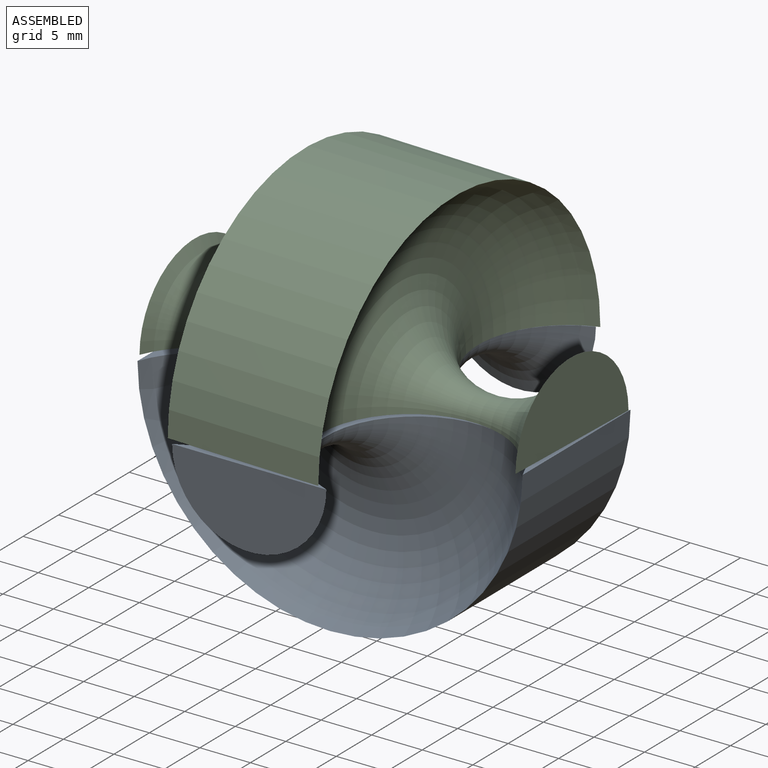
[diagram: assembled view]
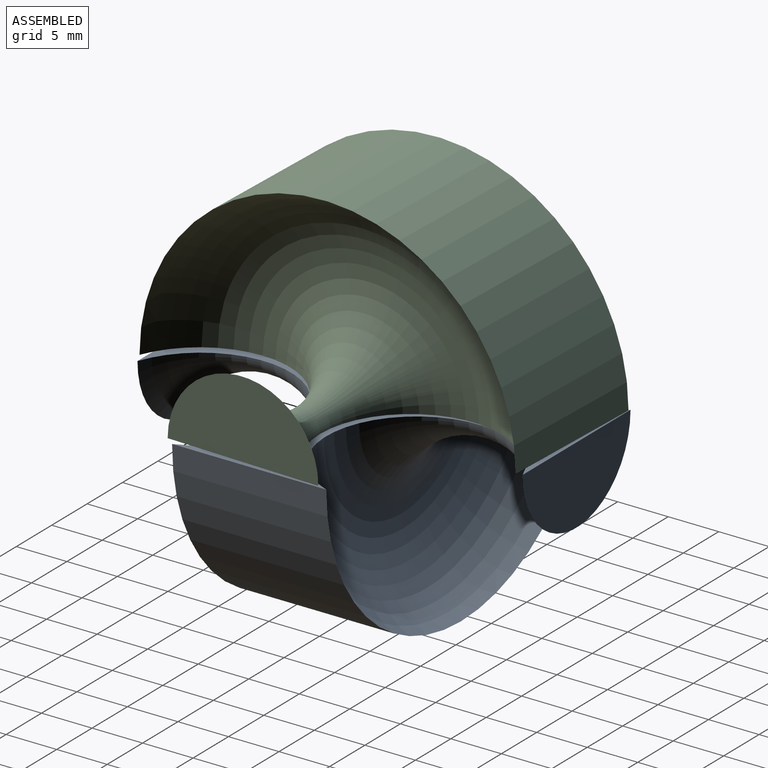
[diagram: assembled view, second angle]
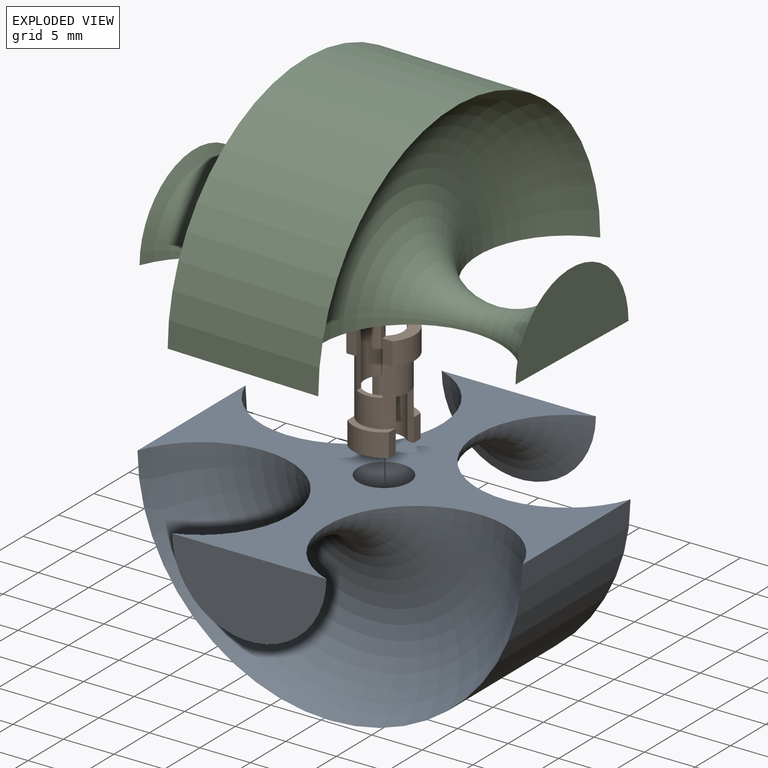
[diagram: exploded view]
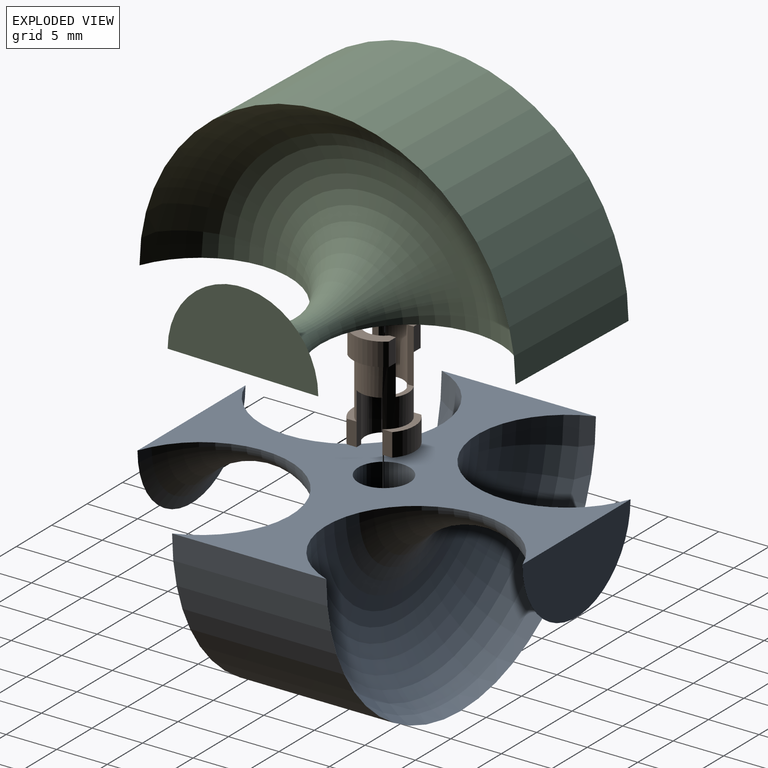
[diagram: exploded view, second angle]
ASSEMBLY  parts=3 mates=2
PART A: 10 faces, bbox 42.4x39.2x21.2 mm
  f0: torus R=10.67mm, axis (0,1,0), area 880.7mm2, adj f1,f4,f5
  f1: cylinder r=19.05mm len=38.1mm, axis (0,1,0), area 913.4mm2, adj f0,f2,f5
  f2: torus R=10.67mm, axis (0,1,0), area 880.7mm2, adj f1,f3,f5
  f3: plane 15.27x7.63mm, normal (0,-1,0), area 91.5mm2, adj f2,f5
  f4: plane 15.27x7.63mm, normal (0,1,0), area 91.5mm2, adj f0,f5
  f5: plane 38.1x38.1mm, normal (0,0,1), area 410mm2, adj f0,f1,f2,f3,f4,f6
  f6: cylinder r=2.54mm len=5.08mm, axis (0,0,1), area 40.5mm2, adj f5,f7
  f7: plane 6.35x6.35mm, normal (0,0,-1), area 11.4mm2, adj f6,f8
  f8: cylinder r=3.17mm len=6.35mm, axis (0,0,-1), area 50.7mm2, adj f7,f9
  f9: plane 6.35x6.35mm, normal (0,0,1), area 31.7mm2, adj f8
PART B: 34 faces, bbox 6.1x6.1x10.4 mm
  f0: cylinder r=3.05mm len=4.1mm, axis (0,0,-1), area 10.3mm2, adj f1,f2,f31,f32
  f1: plane 4.1x1.78mm, normal (0,0,1), area 3mm2, adj f0,f18,f31,f32
  f2: plane 4.1x1.78mm, normal (0,0,-1), area 5mm2, adj f0,f7,f19,f23,f31,f32
  f3: cylinder r=3.05mm len=4.1mm, axis (0,0,-1), area 10.3mm2, adj f4,f5,f30,f33
  f4: plane 4.1x1.78mm, normal (0,0,1), area 3mm2, adj f3,f18,f30,f33
  f5: plane 4.1x1.78mm, normal (0,0,-1), area 5mm2, adj f3,f6,f8,f19,f30,f33
  f6: plane 5.08x0.63mm, normal (0,1,0), area 3.2mm2, adj f5,f18,f19,f24,f33
  f7: plane 5.08x0.63mm, normal (0,-1,0), area 3.2mm2, adj f2,f18,f19,f25,f31
  f8: plane 5.08x0.63mm, normal (0,1,0), area 3.2mm2, adj f5,f18,f19,f25,f30
  f9: cylinder r=3.05mm len=4.1mm, axis (0,0,-1), area 10.3mm2, adj f11,f13,f27,f28
  f10: plane 4.1x1.78mm, normal (0,0,1), area 5mm2, adj f12,f15,f17,f19,f26,f29
  f11: plane 4.1x1.78mm, normal (0,0,-1), area 3mm2, adj f9,f18,f27,f28
  f12: cylinder r=3.05mm len=4.1mm, axis (0,0,-1), area 10.3mm2, adj f10,f14,f26,f29
  f13: plane 4.1x1.78mm, normal (0,0,1), area 5mm2, adj f9,f16,f19,f20,f27,f28
  f14: plane 4.1x1.78mm, normal (0,0,-1), area 3mm2, adj f12,f18,f26,f29
  f15: plane 5.33x0.63mm, normal (-1,0,0), area 3.4mm2, adj f10,f18,f19,f21,f29
  f16: plane 5.33x0.63mm, normal (1,0,0), area 3.4mm2, adj f13,f18,f19,f22,f27
  f17: plane 5.33x0.63mm, normal (-1,0,0), area 3.4mm2, adj f10,f18,f19,f22,f26
  f18: cylinder r=2.41mm len=5.84mm, axis (0,0,-1), area 57.3mm2, adj f1,f4,f6,f7,f8,f11,f14,f15
  f19: cylinder r=1.91mm len=10.41mm, axis (0,0,1), area 66.7mm2, adj f2,f5,f6,f7,f8,f10,f13,f15
  f20: plane 5.33x0.63mm, normal (1,0,0), area 3.4mm2, adj f13,f18,f19,f21,f28
  f21: plane 2.54x0.99mm, normal (0,0,1), area 1.4mm2, adj f15,f18,f19,f20
  f22: plane 2.54x0.99mm, normal (0,0,1), area 1.4mm2, adj f16,f17,f18,f19
  f23: plane 5.08x0.63mm, normal (0,-1,0), area 3.2mm2, adj f2,f18,f19,f24,f32
  f24: plane 2.54x0.99mm, normal (0,0,-1), area 1.4mm2, adj f6,f18,f19,f23
  f25: plane 2.54x0.99mm, normal (0,0,-1), area 1.4mm2, adj f7,f8,f18,f19
  f26: plane 2.29x0.98mm, normal (0,1,0), area 2.2mm2, adj f10,f12,f14,f17
  f27: plane 2.29x0.98mm, normal (0,1,0), area 2.2mm2, adj f9,f11,f13,f16
  f28: plane 2.29x0.98mm, normal (0,-1,0), area 2.2mm2, adj f9,f11,f13,f20
  f29: plane 2.29x0.98mm, normal (0,-1,0), area 2.2mm2, adj f10,f12,f14,f15
  f30: plane 2.29x0.98mm, normal (-1,0,0), area 2.2mm2, adj f3,f4,f5,f8
  f31: plane 2.29x0.98mm, normal (-1,0,0), area 2.2mm2, adj f0,f1,f2,f7
  f32: plane 2.29x0.98mm, normal (1,0,0), area 2.2mm2, adj f0,f1,f2,f23
  f33: plane 2.29x0.98mm, normal (1,0,0), area 2.2mm2, adj f3,f4,f5,f6
PART C: same geometry as A
PLACE A t=(18.22,-33.8,-24.52)mm fixed
PLACE B t=(11.88,-33.8,-29.6)mm
PLACE C rot(axis=(-0.72,-0.7,0),180deg) t=(12.08,-27.45,-24.26)mm
MATE fastened B.f19 <-> A.f6  axis (0,0,-1) through (11.88,-33.8,-29.6)mm
MATE revolute B.f9 <-> C.f6  axis (0,0,1) through (11.88,-33.8,-19.18)mm
